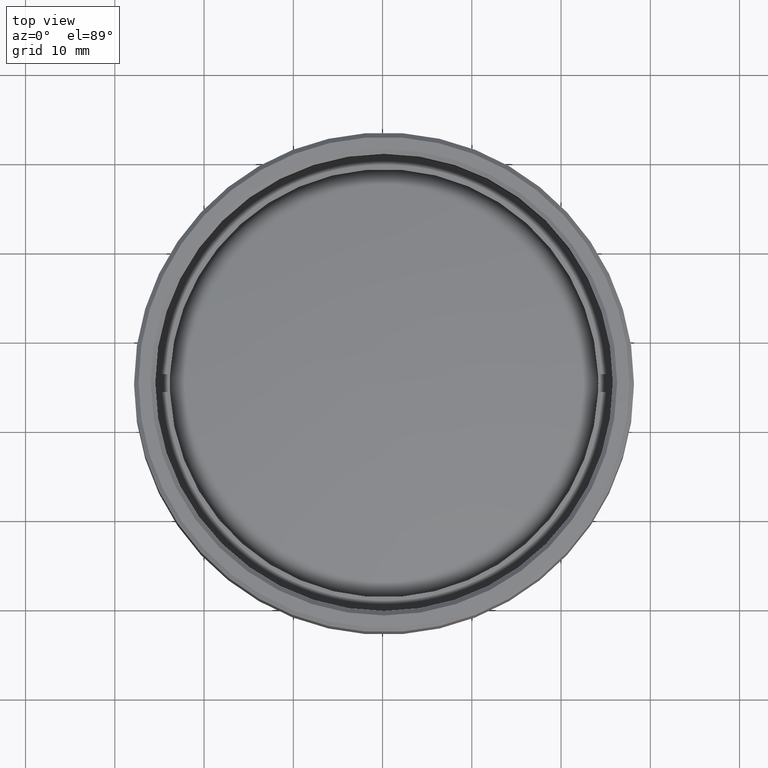
[diagram: clean part render]
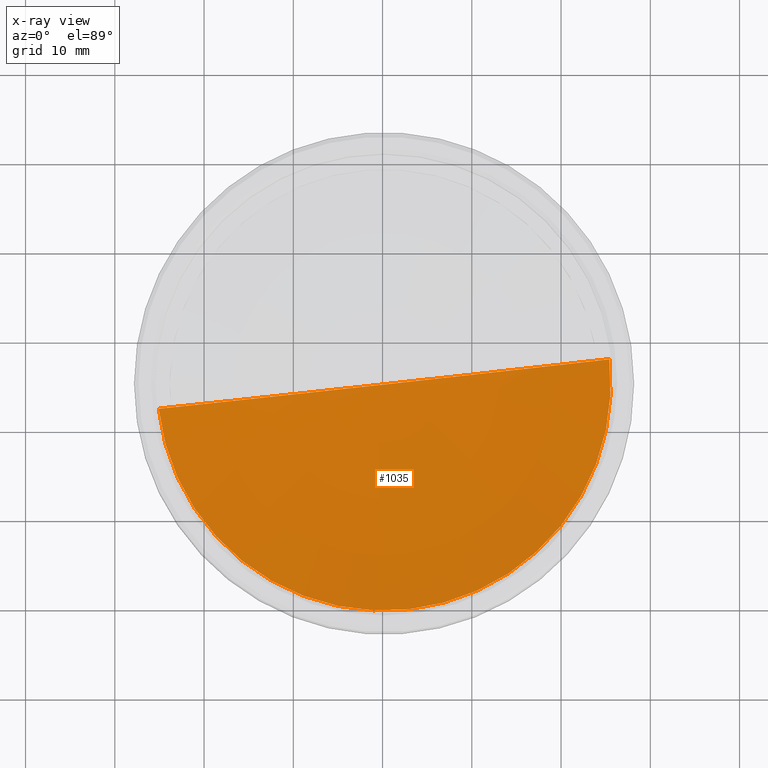
[diagram: x-ray — body ghosted, one internal face saturated and labeled with its STEP entity id]
A machine part, top view, then the same camera in x-ray: the body is ghosted and one INTERNAL B-rep face — a face not visible from any outside direction — is saturated and labeled: STEP entity #1035.
In plain terms, the highlighted spherical surface has radius 111.7 mm.
Its self-contained STEP definition (entity closure, byte-faithful):
#42 = ORIENTED_EDGE ( 'NONE', *, *, #1402, .F. ) ;
#50 = CARTESIAN_POINT ( 'NONE',  ( 0.000000000000000000, 0.000000000000000000, 104.2000000000000028 ) ) ;
#51 = FACE_OUTER_BOUND ( 'NONE', #360, .T. ) ;
#74 = VERTEX_POINT ( 'NONE', #1194 ) ;
#270 = DIRECTION ( 'NONE',  ( 0.000000000000000000, 0.000000000000000000, -1.000000000000000000 ) ) ;
#360 = EDGE_LOOP ( 'NONE', ( #42, #1292 ) ) ;
#488 = DIRECTION ( 'NONE',  ( -1.000000000000000000, 0.000000000000000000, 0.000000000000000000 ) ) ;
#589 = DIRECTION ( 'NONE',  ( -1.000000000000000000, -1.224646799147351975E-16, 0.000000000000000000 ) ) ;
#598 = AXIS2_PLACEMENT_3D ( 'NONE', #671, #270, #1197 ) ;
#624 = AXIS2_PLACEMENT_3D ( 'NONE', #1693, #625, #488 ) ;
#625 = DIRECTION ( 'NONE',  ( 0.000000000000000000, -0.000000000000000000, 1.000000000000000000 ) ) ;
#662 = CARTESIAN_POINT ( 'NONE',  ( -25.39999999999999858, 0.000000000000000000, -4.573756025982659956 ) ) ;
#671 = CARTESIAN_POINT ( 'NONE',  ( 7.468314236400780151E-17, 0.000000000000000000, -4.573756025982659956 ) ) ;
#837 = VERTEX_POINT ( 'NONE', #662 ) ;
#916 = AXIS2_PLACEMENT_3D ( 'NONE', #50, #1403, #589 ) ;
#1035 = ADVANCED_FACE ( 'NONE', ( #51 ), #1166, .T. ) ;
#1087 = EDGE_CURVE ( 'NONE', #74, #837, #1530, .T. ) ;
#1166 = SPHERICAL_SURFACE ( 'NONE', #624, 111.6999999999999886 ) ;
#1194 = CARTESIAN_POINT ( 'NONE',  ( 25.39999999999999858, 3.110602869834280021E-15, -4.573756025982659956 ) ) ;
#1197 = DIRECTION ( 'NONE',  ( -1.000000000000000000, 0.000000000000000000, 0.000000000000000000 ) ) ;
#1292 = ORIENTED_EDGE ( 'NONE', *, *, #1087, .T. ) ;
#1402 = EDGE_CURVE ( 'NONE', #74, #837, #1435, .T. ) ;
#1403 = DIRECTION ( 'NONE',  ( -1.224646799147351975E-16, 1.000000000000000000, -1.999679710215809802E-33 ) ) ;
#1435 = CIRCLE ( 'NONE', #916, 111.6999999999999886 ) ;
#1530 = CIRCLE ( 'NONE', #598, 25.39999999999999858 ) ;
#1693 = CARTESIAN_POINT ( 'NONE',  ( 0.000000000000000000, 0.000000000000000000, 104.2000000000000028 ) ) ;